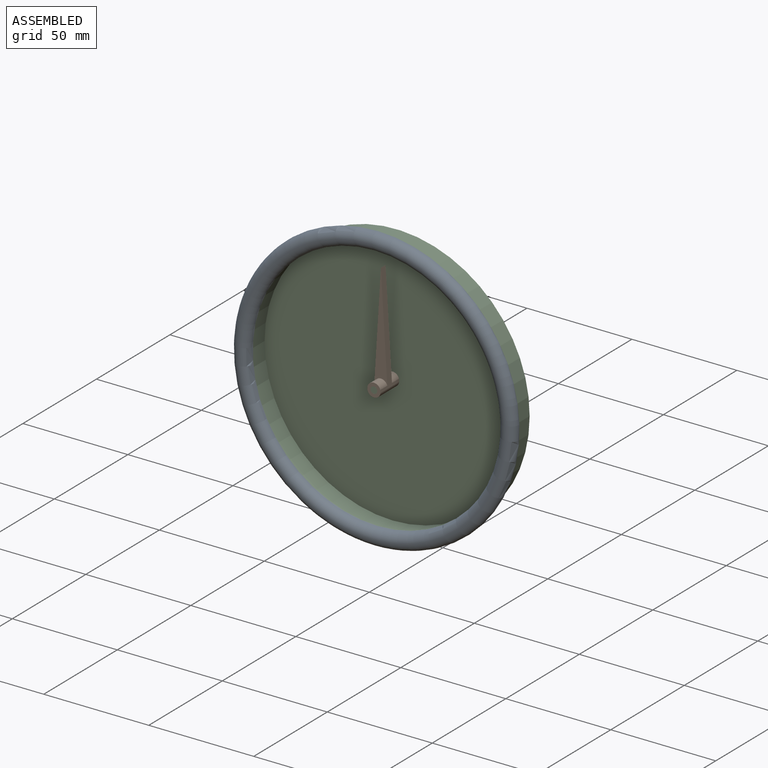
[diagram: assembled view]
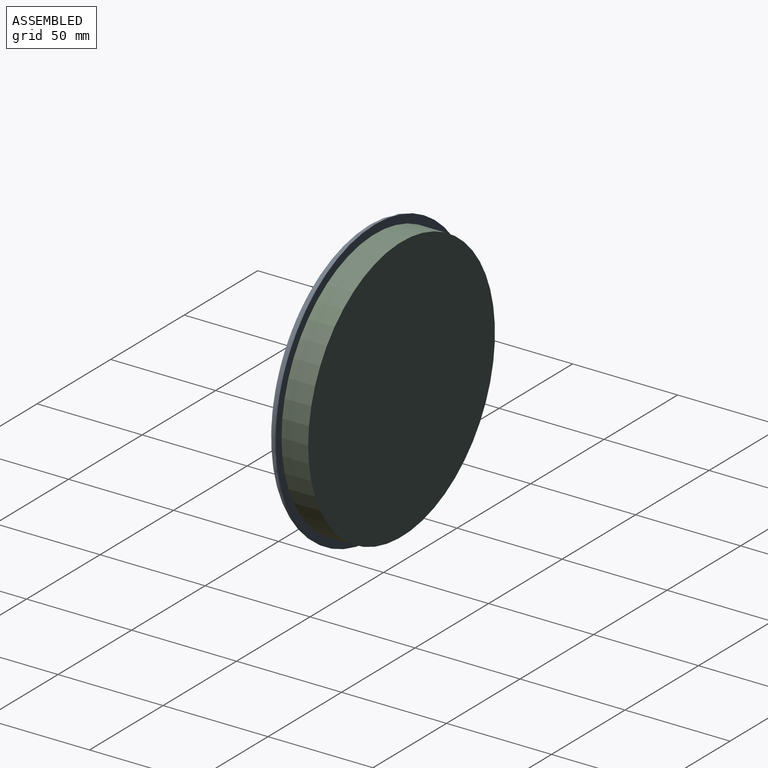
[diagram: assembled view, second angle]
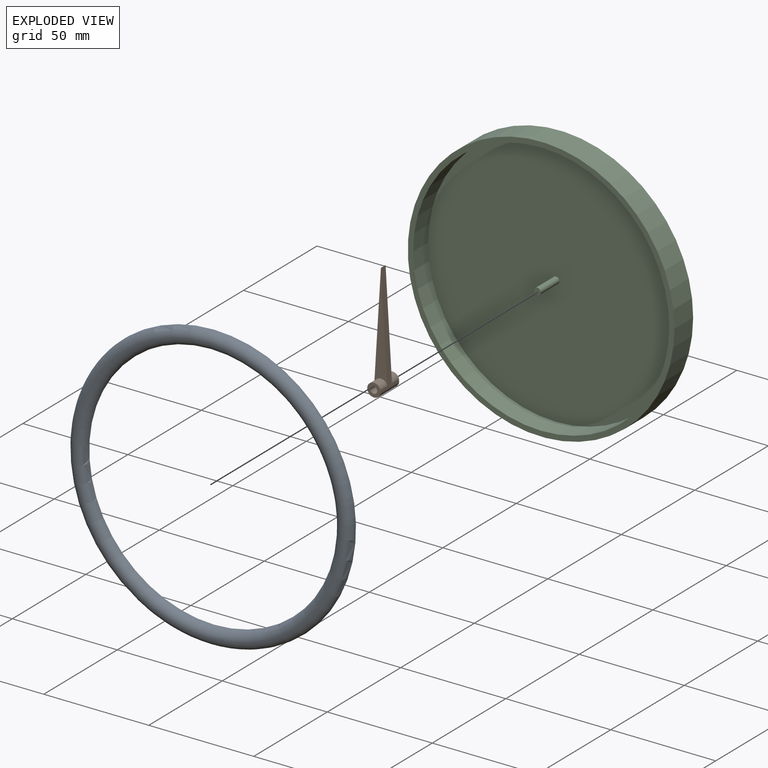
[diagram: exploded view]
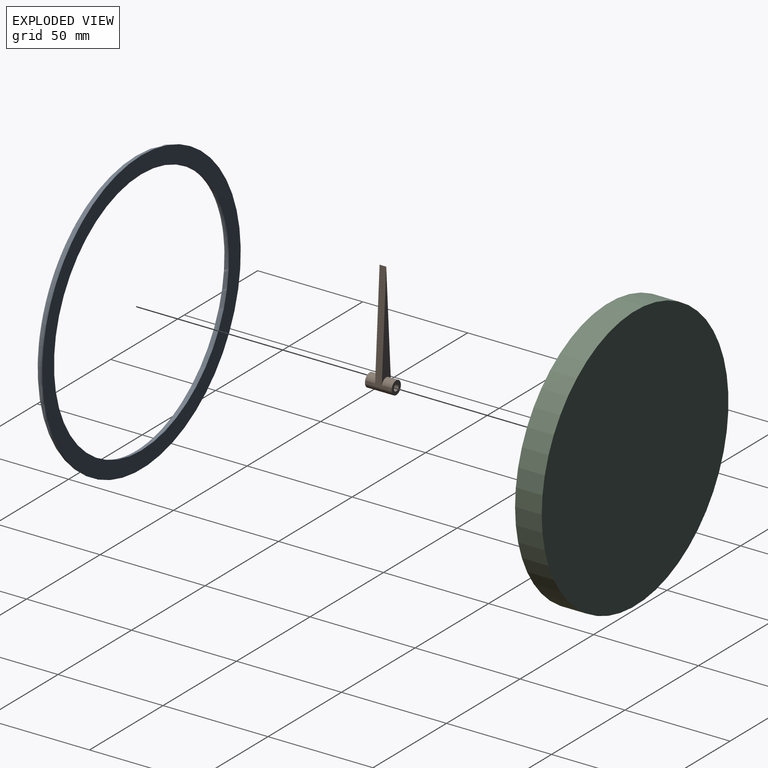
[diagram: exploded view, second angle]
ASSEMBLY  parts=3 mates=2
PART A: 2 faces, bbox 146.2x6.9x146.2 mm
  f0: plane 135.09x135.09mm, normal (0,1,0), area 3226mm2, adj f1
  f1: torus R=63.5mm, axis (0,1,0), area 5067.4mm2, adj f0
PART B: 10 faces, bbox 6.3x12.7x54 mm
  f0: cylinder r=3.17mm len=6.2mm, axis (0,1,0), area 41.4mm2, adj f1,f3,f7,f9
  f1: plane 51.32x12.7mm, normal (1,0,0.06), area 176.7mm2, adj f0,f2,f3,f5,f6,f7,f8,f9
  f2: cylinder r=3.17mm len=6.2mm, axis (0,1,0), area 41.4mm2, adj f1,f3,f6,f8
  f3: plane 50.78x12.7mm, normal (-1,0,0.06), area 164.9mm2, adj f0,f1,f2,f5,f6,f7,f8,f9
  f4: cylinder r=1.59mm len=12.7mm, axis (0,1,0), area 126.7mm2, adj f6,f7
  f5: cylinder r=3.17mm len=12.7mm, axis (0,1,0), area 120.4mm2, adj f1,f3,f6,f7
  f6: plane 6.35x6.31mm, normal (0,-1,0), area 23.7mm2, adj f1,f2,f3,f4,f5
  f7: plane 6.35x6.31mm, normal (0,1,0), area 23.7mm2, adj f0,f1,f3,f4,f5
  f8: plane 50.43x6.2mm, normal (0,-1,0), area 143.7mm2, adj f1,f2,f3
  f9: plane 50.43x6.2mm, normal (0,1,0), area 143.7mm2, adj f0,f1,f3
PART C: 7 faces, bbox 127x15.2x127 mm
  f0: cylinder r=63.5mm len=127mm, axis (0,1,0), area 5067.1mm2, adj f1,f2
  f1: plane 127x127mm, normal (0,-1,0), area 993.1mm2, adj f0,f3
  f2: plane 127x127mm, normal (0,1,0), area 12667.7mm2, adj f0
  f3: cylinder r=60.96mm len=121.92mm, axis (0,1,0), area 3891.5mm2, adj f1,f4
  f4: plane 121.92x121.92mm, normal (0,-1,0), area 11666.6mm2, adj f3,f5
  f5: cylinder r=1.59mm len=12.7mm, axis (0,1,0), area 126.7mm2, adj f4,f6
  f6: plane 3.18x3.18mm, normal (0,-1,0), area 7.9mm2, adj f5
PLACE A t=(81.1,32.67,-24.27)mm
PLACE B t=(81.1,36.48,-24.27)mm
PLACE C t=(81.1,45.37,-24.27)mm
MATE fastened C.f0 <-> A.f1  axis (0,-1,0) through (81.1,32.67,-24.27)mm
MATE revolute B.f0 <-> C.f0  axis (0,1,0) through (81.1,42.83,-24.27)mm
